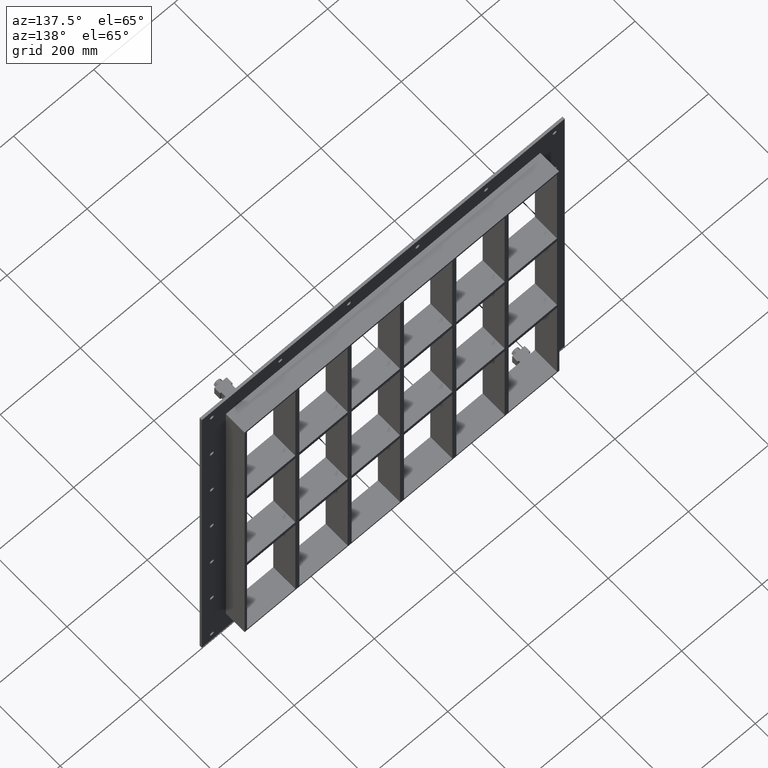
[diagram: clean part render]
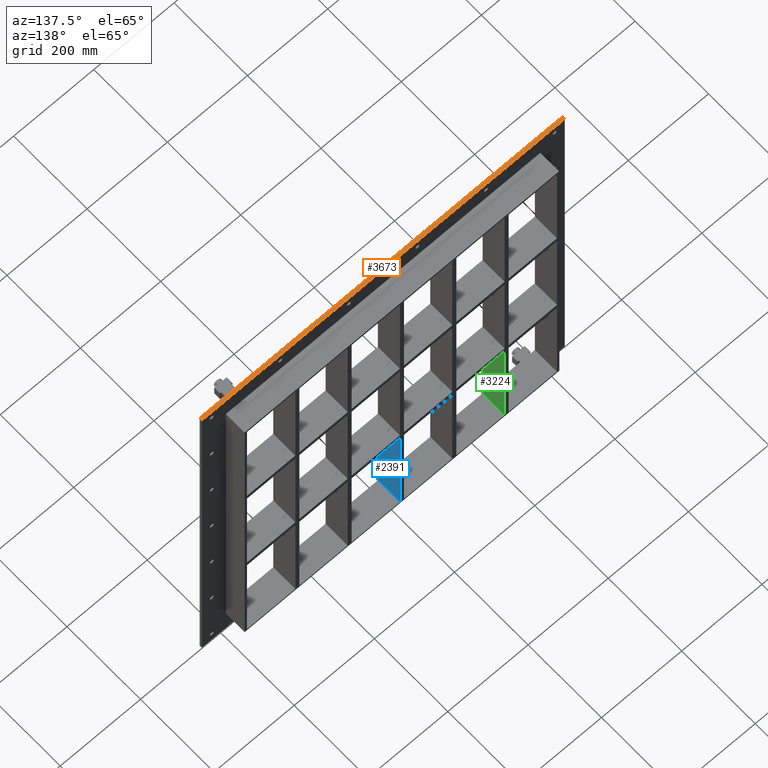
[diagram: same view with three faces highlighted in distinct colors, each labeled with its STEP entity id]
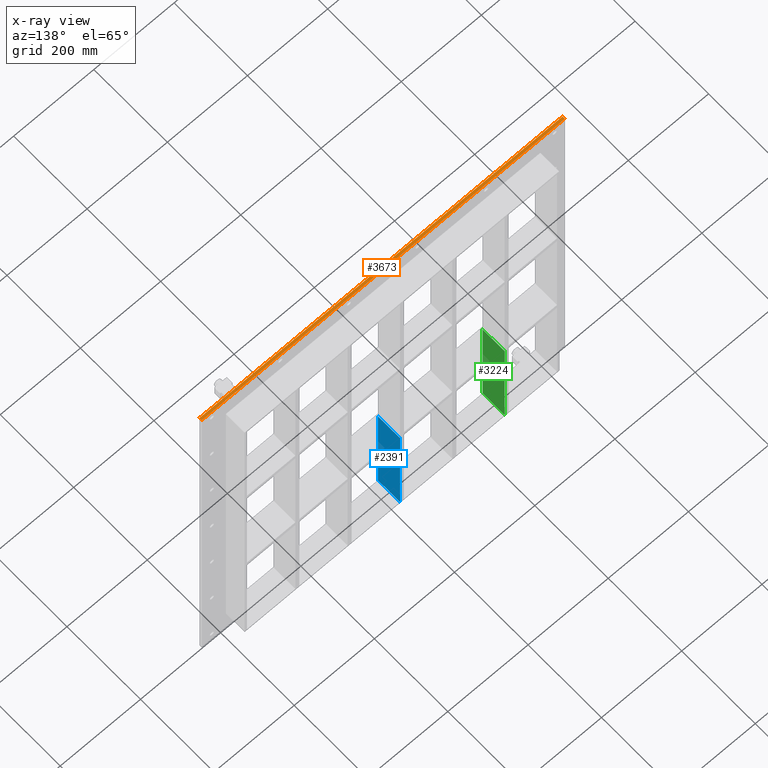
[diagram: x-ray of the same camera — body ghosted, the three highlighted faces saturated]
A machine part, auxiliary view with three faces highlighted in distinct colors.
The next image is the same camera in x-ray (body ghosted, the three faces saturated) — at least one of them is partly hidden behind the body in this view.
Their STEP definitions:

[orange] entity #3673 — the highlighted planar face has unit normal (0, 0, 1).
#3259=CARTESIAN_POINT('',(-452.50000000000023,6.000000000000001,495.00000000000006));
#3260=VERTEX_POINT('',#3259);
#3261=CARTESIAN_POINT('',(452.50000000000006,6.000000000000001,495.00000000000006));
#3262=VERTEX_POINT('',#3261);
#3263=CARTESIAN_POINT('',(-452.50000000000023,6.000000000000001,495.00000000000006));
#3264=DIRECTION('',(1.0,0.0,0.0));
#3265=VECTOR('',#3264,905.00000000000023);
#3266=LINE('',#3263,#3265);
#3267=EDGE_CURVE('',#3260,#3262,#3266,.T.);
#3435=CARTESIAN_POINT('',(-452.50000000000023,0.0,495.00000000000006));
#3436=VERTEX_POINT('',#3435);
#3437=CARTESIAN_POINT('',(452.50000000000006,0.0,495.00000000000006));
#3438=VERTEX_POINT('',#3437);
#3439=CARTESIAN_POINT('',(-452.50000000000023,0.0,495.00000000000006));
#3440=DIRECTION('',(1.0,0.0,0.0));
#3441=VECTOR('',#3440,905.00000000000023);
#3442=LINE('',#3439,#3441);
#3443=EDGE_CURVE('',#3436,#3438,#3442,.T.);
#3612=CARTESIAN_POINT('',(-452.50000000000023,0.0,495.00000000000006));
#3613=DIRECTION('',(0.0,1.0,0.0));
#3614=VECTOR('',#3613,6.000000000000001);
#3615=LINE('',#3612,#3614);
#3616=EDGE_CURVE('',#3436,#3260,#3615,.T.);
#3653=CARTESIAN_POINT('',(452.50000000000006,0.0,495.00000000000006));
#3654=DIRECTION('',(0.0,1.0,0.0));
#3655=VECTOR('',#3654,6.000000000000001);
#3656=LINE('',#3653,#3655);
#3657=EDGE_CURVE('',#3438,#3262,#3656,.T.);
#3662=CARTESIAN_POINT('',(-452.50000000000023,0.0,495.00000000000006));
#3663=DIRECTION('',(0.0,0.0,1.0));
#3664=DIRECTION('',(1.0,0.0,0.0));
#3665=AXIS2_PLACEMENT_3D('',#3662,#3663,#3664);
#3666=PLANE('',#3665);
#3667=ORIENTED_EDGE('',*,*,#3443,.T.);
#3668=ORIENTED_EDGE('',*,*,#3657,.T.);
#3669=ORIENTED_EDGE('',*,*,#3267,.F.);
#3670=ORIENTED_EDGE('',*,*,#3616,.F.);
#3671=EDGE_LOOP('',(#3667,#3668,#3669,#3670));
#3672=FACE_OUTER_BOUND('',#3671,.T.);
#3673=ADVANCED_FACE('',(#3672),#3666,.T.);

[blue] entity #2391 — the highlighted planar face has unit normal (1, 0, 0).
#1958=CARTESIAN_POINT('',(4.999999999996376,57.0,-151.00000000001125));
#1959=VERTEX_POINT('',#1958);
#1966=CARTESIAN_POINT('',(4.999999999996376,57.0,-428.99999999998187));
#1967=VERTEX_POINT('',#1966);
#1968=CARTESIAN_POINT('',(4.999999999996376,57.0,-151.0000000000112));
#1969=DIRECTION('',(0.0,0.0,-1.0));
#1970=VECTOR('',#1969,277.99999999997067);
#1971=LINE('',#1968,#1970);
#1972=EDGE_CURVE('',#1959,#1967,#1971,.T.);
#2361=CARTESIAN_POINT('',(4.999999999996376,-3.0,429.00000000000006));
#2362=DIRECTION('',(1.0,0.0,0.0));
#2363=DIRECTION('',(0.0,0.0,-1.0));
#2364=AXIS2_PLACEMENT_3D('',#2361,#2362,#2363);
#2365=PLANE('',#2364);
#2366=CARTESIAN_POINT('',(4.999999999996376,-3.0,-151.00000000001125));
#2367=VERTEX_POINT('',#2366);
#2368=CARTESIAN_POINT('',(4.999999999996376,-3.0,-151.00000000001123));
#2369=DIRECTION('',(0.0,1.0,0.0));
#2370=VECTOR('',#2369,60.0);
#2371=LINE('',#2368,#2370);
#2372=EDGE_CURVE('',#2367,#1959,#2371,.T.);
#2373=ORIENTED_EDGE('',*,*,#2372,.F.);
#2374=CARTESIAN_POINT('',(4.999999999996376,-3.0,-428.99999999998181));
#2375=VERTEX_POINT('',#2374);
#2376=CARTESIAN_POINT('',(4.999999999996376,-3.0,-151.0000000000112));
#2377=DIRECTION('',(0.0,0.0,-1.0));
#2378=VECTOR('',#2377,277.99999999997067);
#2379=LINE('',#2376,#2378);
#2380=EDGE_CURVE('',#2367,#2375,#2379,.T.);
#2381=ORIENTED_EDGE('',*,*,#2380,.T.);
#2382=CARTESIAN_POINT('',(4.999999999996376,57.000000000000007,-429.00000000000006));
#2383=DIRECTION('',(0.0,-1.0,0.0));
#2384=VECTOR('',#2383,60.000000000000007);
#2385=LINE('',#2382,#2384);
#2386=EDGE_CURVE('',#1967,#2375,#2385,.T.);
#2387=ORIENTED_EDGE('',*,*,#2386,.F.);
#2388=ORIENTED_EDGE('',*,*,#1972,.F.);
#2389=EDGE_LOOP('',(#2373,#2381,#2387,#2388));
#2390=FACE_OUTER_BOUND('',#2389,.T.);
#2391=ADVANCED_FACE('',(#2390),#2365,.T.);

[green] entity #3224 — the highlighted planar face has unit normal (1, 0, 0).
#1890=CARTESIAN_POINT('',(-256.00000000000364,57.0,-151.00000000001148));
#1891=VERTEX_POINT('',#1890);
#1898=CARTESIAN_POINT('',(-256.00000000000364,57.0,-428.99999999998187));
#1899=VERTEX_POINT('',#1898);
#1900=CARTESIAN_POINT('',(-256.00000000000364,57.0,-151.00000000001143));
#1901=DIRECTION('',(0.0,0.0,-1.0));
#1902=VECTOR('',#1901,277.99999999997044);
#1903=LINE('',#1900,#1902);
#1904=EDGE_CURVE('',#1891,#1899,#1903,.T.);
#2509=CARTESIAN_POINT('',(-256.00000000000364,-3.0,-428.99999999998181));
#2510=VERTEX_POINT('',#2509);
#2511=CARTESIAN_POINT('',(-256.00000000000358,57.000000000000007,-429.00000000000006));
#2512=DIRECTION('',(0.0,-1.0,0.0));
#2513=VECTOR('',#2512,60.000000000000007);
#2514=LINE('',#2511,#2513);
#2515=EDGE_CURVE('',#1899,#2510,#2514,.T.);
#2856=CARTESIAN_POINT('',(-256.00000000000364,-3.0,-151.00000000001148));
#2857=VERTEX_POINT('',#2856);
#2858=CARTESIAN_POINT('',(-256.00000000000364,-3.0,-151.00000000001143));
#2859=DIRECTION('',(0.0,0.0,-1.0));
#2860=VECTOR('',#2859,277.99999999997044);
#2861=LINE('',#2858,#2860);
#2862=EDGE_CURVE('',#2857,#2510,#2861,.T.);
#2950=CARTESIAN_POINT('',(-256.00000000000369,57.0,-151.00000000001148));
#2951=DIRECTION('',(0.0,-1.0,0.0));
#2952=VECTOR('',#2951,60.0);
#2953=LINE('',#2950,#2952);
#2954=EDGE_CURVE('',#1891,#2857,#2953,.T.);
#3213=CARTESIAN_POINT('',(-256.00000000000364,-3.0,429.00000000000006));
#3214=DIRECTION('',(1.0,0.0,0.0));
#3215=DIRECTION('',(0.0,0.0,-1.0));
#3216=AXIS2_PLACEMENT_3D('',#3213,#3214,#3215);
#3217=PLANE('',#3216);
#3218=ORIENTED_EDGE('',*,*,#2954,.T.);
#3219=ORIENTED_EDGE('',*,*,#2862,.T.);
#3220=ORIENTED_EDGE('',*,*,#2515,.F.);
#3221=ORIENTED_EDGE('',*,*,#1904,.F.);
#3222=EDGE_LOOP('',(#3218,#3219,#3220,#3221));
#3223=FACE_OUTER_BOUND('',#3222,.T.);
#3224=ADVANCED_FACE('',(#3223),#3217,.T.);